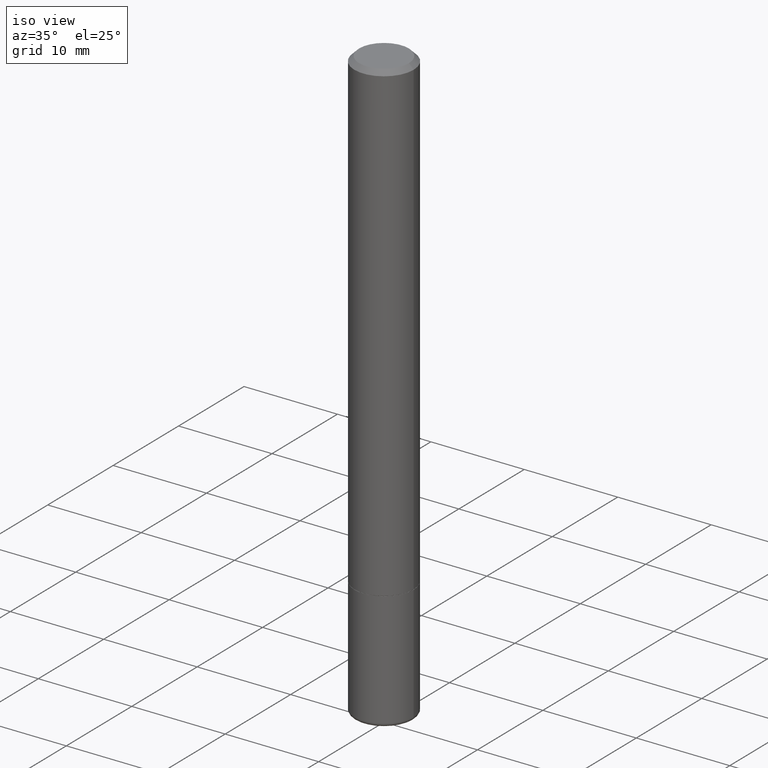
[diagram: clean part render]
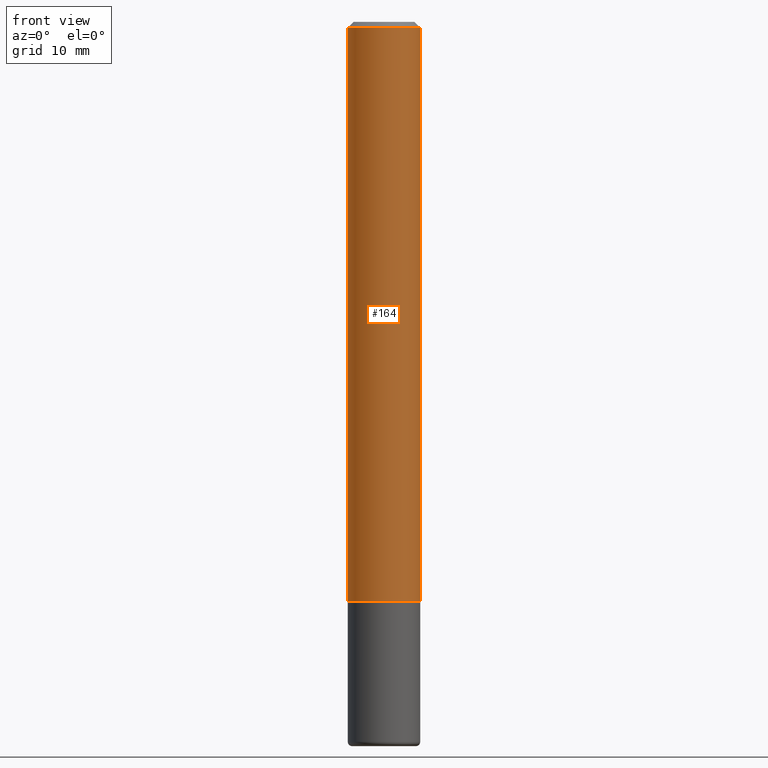
[diagram: tour spotlight — one face highlighted and labeled with its STEP entity id]
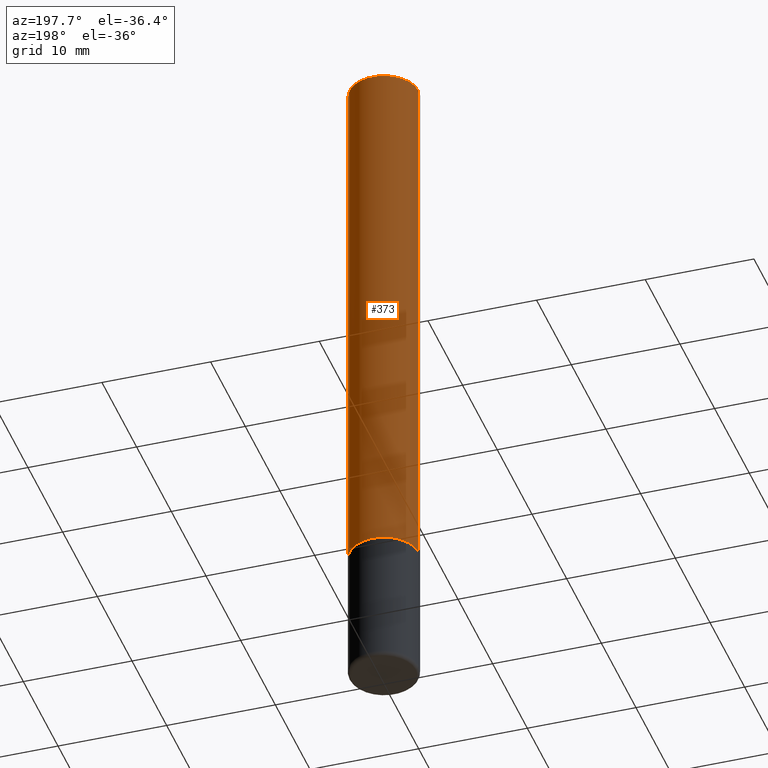
[diagram: tour spotlight — one face highlighted and labeled with its STEP entity id]
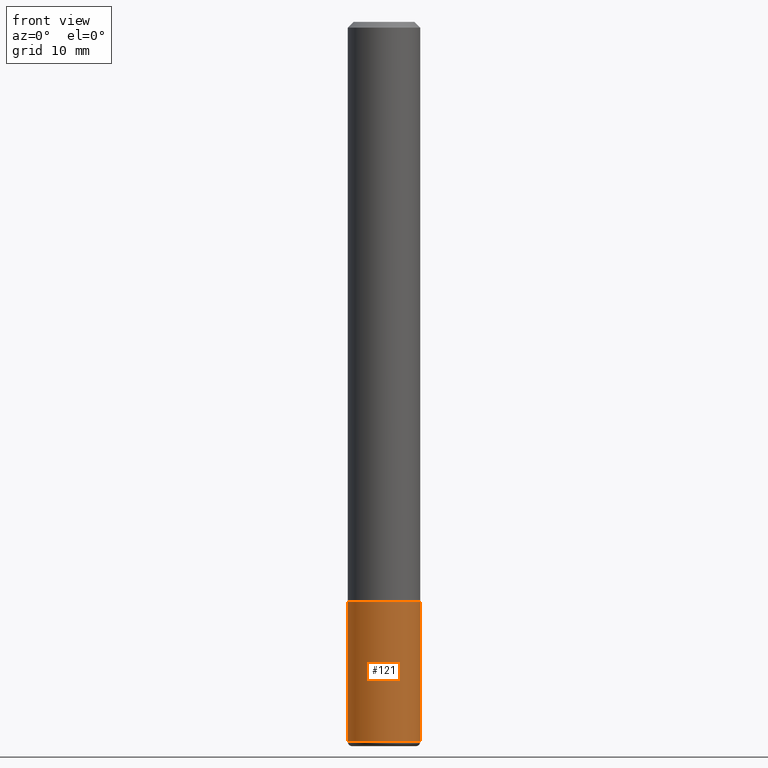
[diagram: tour spotlight — one face highlighted and labeled with its STEP entity id]
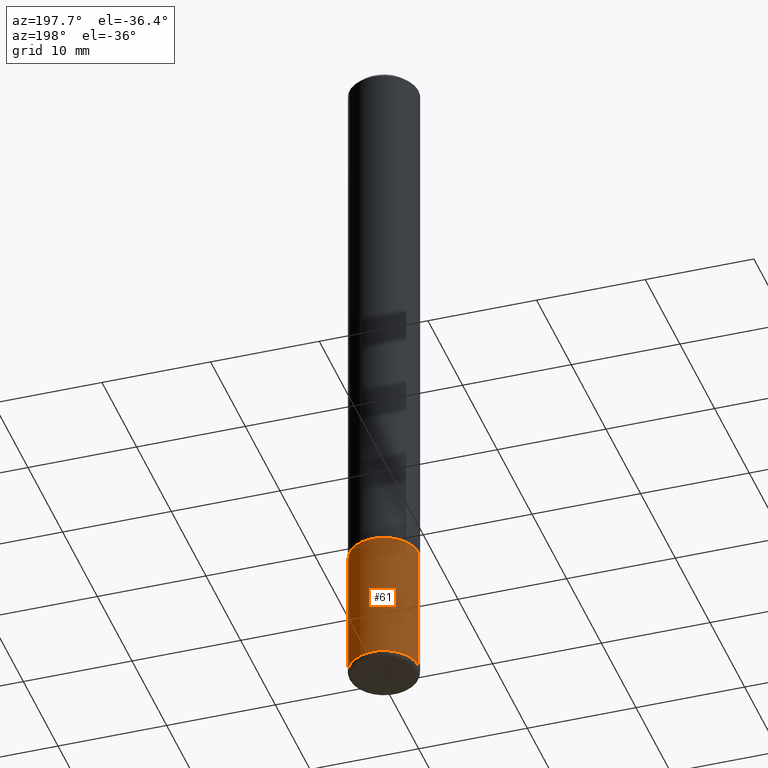
[diagram: tour spotlight — one face highlighted and labeled with its STEP entity id]
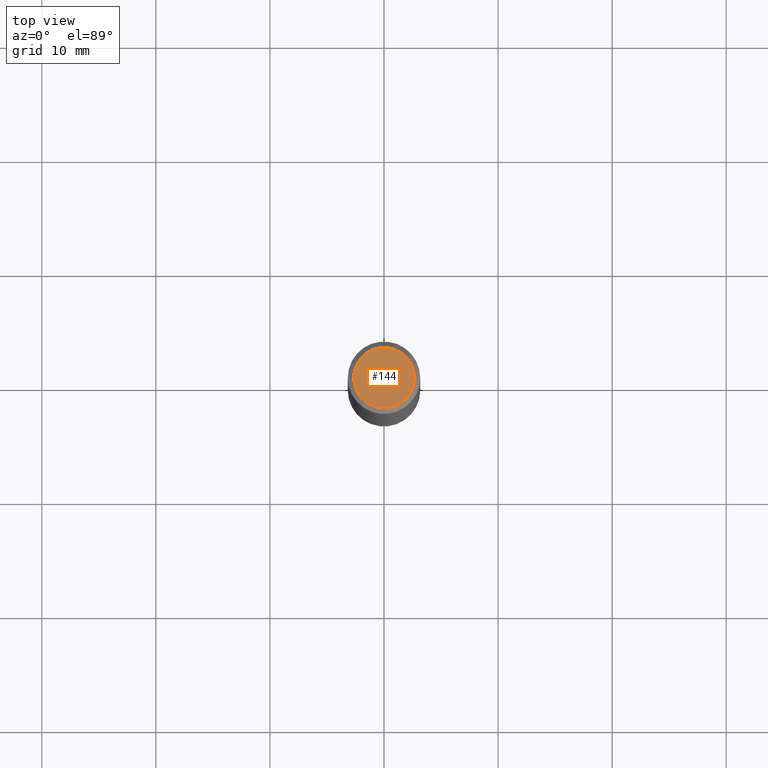
[diagram: tour spotlight — one face highlighted and labeled with its STEP entity id]
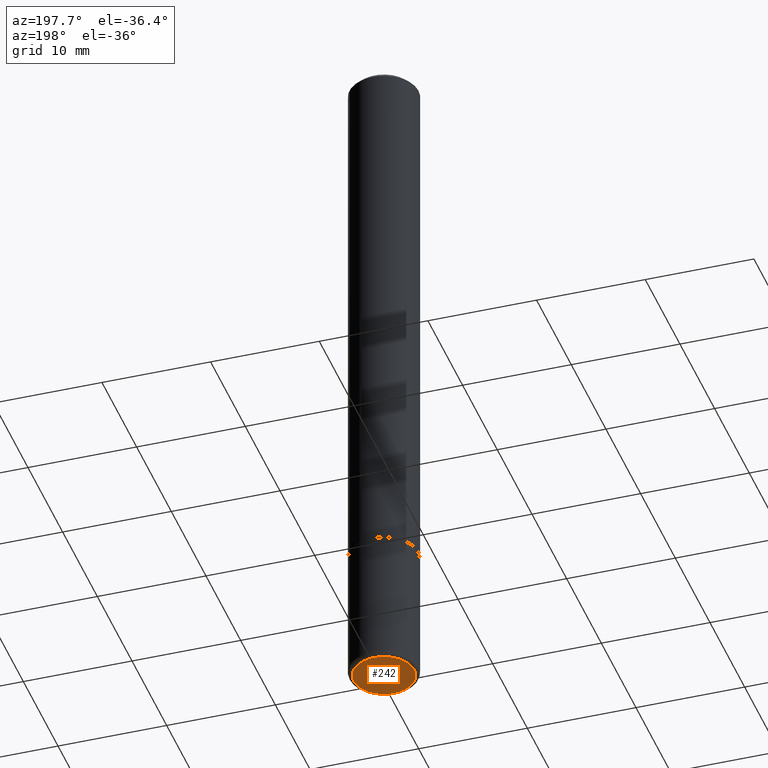
[diagram: tour spotlight — one face highlighted and labeled with its STEP entity id]
A machine part: a face-by-face anatomy tour. The part has 14 B-rep faces; the first image is the clean iso view, then the 6 largest visible faces are spotlighted one at a time (largest first), each with its STEP entity span.

Face 1 — front view, entity #164. In plain terms, the highlighted cylindrical surface (edge-blend (fillet) strip) has radius 3.175 mm, axis along (-0, 0, 1).
Definition (entity closure, byte-faithful):
#36 = DIRECTION ( 'NONE',  ( 1.000000000000000000, -6.982962677686264344E-15, 0.000000000000000000 ) ) ;
#54 = AXIS2_PLACEMENT_3D ( 'NONE', #204, #304, #36 ) ;
#66 = EDGE_CURVE ( 'NONE', #192, #297, #413, .T. ) ;
#67 = LINE ( 'NONE', #187, #380 ) ;
#81 = CARTESIAN_POINT ( 'NONE',  ( 0.000000000000000000, 0.000000000000000000, 0.000000000000000000 ) ) ;
#84 = FACE_OUTER_BOUND ( 'NONE', #151, .T. ) ;
#89 = VECTOR ( 'NONE', #337, 39.37007874015748143 ) ;
#91 = LINE ( 'NONE', #124, #89 ) ;
#124 = CARTESIAN_POINT ( 'NONE',  ( -0.1250000000000001110, 8.881784197001260212E-16, -6.148668862818637832E-30 ) ) ;
#151 = EDGE_LOOP ( 'NONE', ( #415, #287, #336, #173 ) ) ;
#164 = ADVANCED_FACE ( 'NONE', ( #84 ), #317, .T. ) ;
#173 = ORIENTED_EDGE ( 'NONE', *, *, #66, .F. ) ;
#179 = EDGE_CURVE ( 'NONE', #393, #297, #67, .T. ) ;
#187 = CARTESIAN_POINT ( 'NONE',  ( 0.1250000000000001110, -8.728703347107841277E-16, 6.095220969744924646E-30 ) ) ;
#191 = CARTESIAN_POINT ( 'NONE',  ( -0.1249999999999999861, 8.030407079339202378E-16, -0.02000000000000002470 ) ) ;
#192 = VERTEX_POINT ( 'NONE', #191 ) ;
#193 = DIRECTION ( 'NONE',  ( -2.445468806185136877E-29, 3.491481338843145188E-15, 1.000000000000000000 ) ) ;
#204 = CARTESIAN_POINT ( 'NONE',  ( 4.888492143564087591E-29, -6.979471196347447369E-15, -1.998999999999999888 ) ) ;
#211 = DIRECTION ( 'NONE',  ( -2.445468806185136597E-29, 3.491481338843145583E-15, 1.000000000000000000 ) ) ;
#221 = CARTESIAN_POINT ( 'NONE',  ( 0.1249999999999999861, -9.273918764983043491E-16, -0.02000000000000002470 ) ) ;
#226 = CARTESIAN_POINT ( 'NONE',  ( -0.1250000000000002498, -2.636471991862024185E-15, -1.998999999999999888 ) ) ;
#238 = AXIS2_PLACEMENT_3D ( 'NONE', #375, #403, #410 ) ;
#287 = ORIENTED_EDGE ( 'NONE', *, *, #365, .T. ) ;
#297 = VERTEX_POINT ( 'NONE', #221 ) ;
#304 = DIRECTION ( 'NONE',  ( -2.445468806185136597E-29, 3.491481338843145583E-15, 1.000000000000000000 ) ) ;
#317 = CYLINDRICAL_SURFACE ( 'NONE', #352, 0.1250000000000001110 ) ;
#330 = VERTEX_POINT ( 'NONE', #226 ) ;
#336 = ORIENTED_EDGE ( 'NONE', *, *, #179, .T. ) ;
#337 = DIRECTION ( 'NONE',  ( -2.445468806185136877E-29, 3.491481338843145188E-15, 1.000000000000000000 ) ) ;
#349 = CARTESIAN_POINT ( 'NONE',  ( 0.1250000000000002498, -7.852341531058232286E-15, -1.998999999999999888 ) ) ;
#352 = AXIS2_PLACEMENT_3D ( 'NONE', #81, #211, #407 ) ;
#362 = CIRCLE ( 'NONE', #54, 0.1250000000000002498 ) ;
#365 = EDGE_CURVE ( 'NONE', #330, #393, #362, .T. ) ;
#375 = CARTESIAN_POINT ( 'NONE',  ( 4.890937612370279289E-31, -6.982962677686299005E-17, -0.02000000000000002470 ) ) ;
#380 = VECTOR ( 'NONE', #193, 39.37007874015748143 ) ;
#393 = VERTEX_POINT ( 'NONE', #349 ) ;
#403 = DIRECTION ( 'NONE',  ( -2.445468806185136597E-29, 3.491481338843145583E-15, 1.000000000000000000 ) ) ;
#407 = DIRECTION ( 'NONE',  ( 1.000000000000000000, -6.982962677686266711E-15, 4.876176775795935232E-29 ) ) ;
#409 = EDGE_CURVE ( 'NONE', #330, #192, #91, .T. ) ;
#410 = DIRECTION ( 'NONE',  ( 1.000000000000000000, -6.982962677686266711E-15, 0.000000000000000000 ) ) ;
#413 = CIRCLE ( 'NONE', #238, 0.1249999999999999861 ) ;
#415 = ORIENTED_EDGE ( 'NONE', *, *, #409, .F. ) ;

Face 2 — auxiliary view, entity #373. In plain terms, the highlighted cylindrical surface (edge-blend (fillet) strip) has radius 3.175 mm, axis along (-0, 0, 1).
Definition (entity closure, byte-faithful):
#9 = ORIENTED_EDGE ( 'NONE', *, *, #354, .F. ) ;
#11 = FACE_OUTER_BOUND ( 'NONE', #38, .T. ) ;
#17 = ORIENTED_EDGE ( 'NONE', *, *, #179, .F. ) ;
#21 = AXIS2_PLACEMENT_3D ( 'NONE', #312, #279, #208 ) ;
#25 = ORIENTED_EDGE ( 'NONE', *, *, #43, .T. ) ;
#38 = EDGE_LOOP ( 'NONE', ( #25, #364, #9, #17 ) ) ;
#42 = DIRECTION ( 'NONE',  ( -2.445468806185136597E-29, 3.491481338843145583E-15, 1.000000000000000000 ) ) ;
#43 = EDGE_CURVE ( 'NONE', #393, #330, #198, .T. ) ;
#67 = LINE ( 'NONE', #187, #380 ) ;
#89 = VECTOR ( 'NONE', #337, 39.37007874015748143 ) ;
#91 = LINE ( 'NONE', #124, #89 ) ;
#108 = CARTESIAN_POINT ( 'NONE',  ( 4.890937612370279289E-31, -6.982962677686299005E-17, -0.02000000000000002470 ) ) ;
#114 = CARTESIAN_POINT ( 'NONE',  ( 0.000000000000000000, 0.000000000000000000, 0.000000000000000000 ) ) ;
#124 = CARTESIAN_POINT ( 'NONE',  ( -0.1250000000000001110, 8.881784197001260212E-16, -6.148668862818637832E-30 ) ) ;
#179 = EDGE_CURVE ( 'NONE', #393, #297, #67, .T. ) ;
#187 = CARTESIAN_POINT ( 'NONE',  ( 0.1250000000000001110, -8.728703347107841277E-16, 6.095220969744924646E-30 ) ) ;
#191 = CARTESIAN_POINT ( 'NONE',  ( -0.1249999999999999861, 8.030407079339202378E-16, -0.02000000000000002470 ) ) ;
#192 = VERTEX_POINT ( 'NONE', #191 ) ;
#193 = DIRECTION ( 'NONE',  ( -2.445468806185136877E-29, 3.491481338843145188E-15, 1.000000000000000000 ) ) ;
#198 = CIRCLE ( 'NONE', #21, 0.1250000000000002498 ) ;
#202 = DIRECTION ( 'NONE',  ( 1.000000000000000000, -6.982962677686266711E-15, 0.000000000000000000 ) ) ;
#208 = DIRECTION ( 'NONE',  ( 1.000000000000000000, -6.982962677686264344E-15, 0.000000000000000000 ) ) ;
#209 = CIRCLE ( 'NONE', #353, 0.1249999999999999861 ) ;
#221 = CARTESIAN_POINT ( 'NONE',  ( 0.1249999999999999861, -9.273918764983043491E-16, -0.02000000000000002470 ) ) ;
#226 = CARTESIAN_POINT ( 'NONE',  ( -0.1250000000000002498, -2.636471991862024185E-15, -1.998999999999999888 ) ) ;
#240 = DIRECTION ( 'NONE',  ( -2.445468806185136597E-29, 3.491481338843145583E-15, 1.000000000000000000 ) ) ;
#245 = AXIS2_PLACEMENT_3D ( 'NONE', #114, #240, #296 ) ;
#271 = CYLINDRICAL_SURFACE ( 'NONE', #245, 0.1250000000000001110 ) ;
#279 = DIRECTION ( 'NONE',  ( -2.445468806185136597E-29, 3.491481338843145583E-15, 1.000000000000000000 ) ) ;
#296 = DIRECTION ( 'NONE',  ( 1.000000000000000000, -6.982962677686266711E-15, 4.876176775795935232E-29 ) ) ;
#297 = VERTEX_POINT ( 'NONE', #221 ) ;
#312 = CARTESIAN_POINT ( 'NONE',  ( 4.888492143564087591E-29, -6.979471196347447369E-15, -1.998999999999999888 ) ) ;
#330 = VERTEX_POINT ( 'NONE', #226 ) ;
#337 = DIRECTION ( 'NONE',  ( -2.445468806185136877E-29, 3.491481338843145188E-15, 1.000000000000000000 ) ) ;
#349 = CARTESIAN_POINT ( 'NONE',  ( 0.1250000000000002498, -7.852341531058232286E-15, -1.998999999999999888 ) ) ;
#353 = AXIS2_PLACEMENT_3D ( 'NONE', #108, #42, #202 ) ;
#354 = EDGE_CURVE ( 'NONE', #297, #192, #209, .T. ) ;
#364 = ORIENTED_EDGE ( 'NONE', *, *, #409, .T. ) ;
#373 = ADVANCED_FACE ( 'NONE', ( #11 ), #271, .T. ) ;
#380 = VECTOR ( 'NONE', #193, 39.37007874015748143 ) ;
#393 = VERTEX_POINT ( 'NONE', #349 ) ;
#409 = EDGE_CURVE ( 'NONE', #330, #192, #91, .T. ) ;

Face 3 — front view, entity #121. In plain terms, the highlighted cylindrical surface (edge-blend (fillet) strip) has radius 3.175 mm, axis along (-0, 0, 1).
Definition (entity closure, byte-faithful):
#4 = EDGE_CURVE ( 'NONE', #111, #93, #13, .T. ) ;
#13 = CIRCLE ( 'NONE', #52, 0.1250000000000000000 ) ;
#29 = ORIENTED_EDGE ( 'NONE', *, *, #4, .F. ) ;
#33 = DIRECTION ( 'NONE',  ( -2.445468806185136877E-29, 3.491481338843145188E-15, 1.000000000000000000 ) ) ;
#47 = AXIS2_PLACEMENT_3D ( 'NONE', #379, #408, #339 ) ;
#52 = AXIS2_PLACEMENT_3D ( 'NONE', #77, #342, #149 ) ;
#65 = LINE ( 'NONE', #358, #333 ) ;
#73 = VERTEX_POINT ( 'NONE', #276 ) ;
#75 = EDGE_CURVE ( 'NONE', #308, #73, #82, .T. ) ;
#77 = CARTESIAN_POINT ( 'NONE',  ( 4.890937612370273194E-29, -6.982962677686291165E-15, -2.000000000000000000 ) ) ;
#82 = CIRCLE ( 'NONE', #377, 0.1250000000000000000 ) ;
#86 = FACE_OUTER_BOUND ( 'NONE', #205, .T. ) ;
#90 = LINE ( 'NONE', #214, #270 ) ;
#93 = VERTEX_POINT ( 'NONE', #370 ) ;
#111 = VERTEX_POINT ( 'NONE', #251 ) ;
#121 = ADVANCED_FACE ( 'NONE', ( #86 ), #212, .T. ) ;
#138 = EDGE_CURVE ( 'NONE', #308, #111, #90, .T. ) ;
#149 = DIRECTION ( 'NONE',  ( 1.000000000000000000, -6.982962677686270655E-15, 0.000000000000000000 ) ) ;
#205 = EDGE_LOOP ( 'NONE', ( #281, #388, #399, #29 ) ) ;
#210 = EDGE_CURVE ( 'NONE', #73, #93, #65, .T. ) ;
#212 = CYLINDRICAL_SURFACE ( 'NONE', #47, 0.1250000000000000000 ) ;
#214 = CARTESIAN_POINT ( 'NONE',  ( -0.1250000000000000000, 8.881784197001252323E-16, -6.148668862818632227E-30 ) ) ;
#241 = DIRECTION ( 'NONE',  ( 1.000000000000000000, -6.982962677686270655E-15, 0.000000000000000000 ) ) ;
#251 = CARTESIAN_POINT ( 'NONE',  ( -0.1250000000000000000, -6.941468482655628296E-15, -2.000000000000000000 ) ) ;
#270 = VECTOR ( 'NONE', #280, 39.37007874015748143 ) ;
#276 = CARTESIAN_POINT ( 'NONE',  ( 0.1250000000000000555, -9.549201461736000019E-15, -2.484999999999999876 ) ) ;
#280 = DIRECTION ( 'NONE',  ( -2.445468806185136877E-29, 3.491481338843145188E-15, 1.000000000000000000 ) ) ;
#281 = ORIENTED_EDGE ( 'NONE', *, *, #138, .F. ) ;
#292 = CARTESIAN_POINT ( 'NONE',  ( -0.1250000000000000555, -7.788152707325091448E-15, -2.484999999999999876 ) ) ;
#308 = VERTEX_POINT ( 'NONE', #292 ) ;
#333 = VECTOR ( 'NONE', #33, 39.37007874015748143 ) ;
#339 = DIRECTION ( 'NONE',  ( 1.000000000000000000, -6.982962677686266711E-15, 4.876176775795935793E-29 ) ) ;
#340 = CARTESIAN_POINT ( 'NONE',  ( 6.076989983370064174E-29, -8.676331127025216680E-15, -2.484999999999999876 ) ) ;
#342 = DIRECTION ( 'NONE',  ( -2.445468806185136597E-29, 3.491481338843145583E-15, 1.000000000000000000 ) ) ;
#358 = CARTESIAN_POINT ( 'NONE',  ( 0.1250000000000000000, -8.728703347107833388E-16, 6.095220969744919741E-30 ) ) ;
#370 = CARTESIAN_POINT ( 'NONE',  ( 0.1250000000000000000, -7.855833012397075293E-15, -2.000000000000000000 ) ) ;
#377 = AXIS2_PLACEMENT_3D ( 'NONE', #340, #405, #241 ) ;
#379 = CARTESIAN_POINT ( 'NONE',  ( 0.000000000000000000, 0.000000000000000000, 0.000000000000000000 ) ) ;
#388 = ORIENTED_EDGE ( 'NONE', *, *, #75, .T. ) ;
#399 = ORIENTED_EDGE ( 'NONE', *, *, #210, .T. ) ;
#405 = DIRECTION ( 'NONE',  ( -2.445468806185136597E-29, 3.491481338843145583E-15, 1.000000000000000000 ) ) ;
#408 = DIRECTION ( 'NONE',  ( -2.445468806185136597E-29, 3.491481338843145583E-15, 1.000000000000000000 ) ) ;

Face 4 — auxiliary view, entity #61. In plain terms, the highlighted cylindrical surface (edge-blend (fillet) strip) has radius 3.175 mm, axis along (-0, 0, 1).
Definition (entity closure, byte-faithful):
#15 = CIRCLE ( 'NONE', #63, 0.1250000000000000000 ) ;
#31 = EDGE_LOOP ( 'NONE', ( #96, #385, #168, #266 ) ) ;
#33 = DIRECTION ( 'NONE',  ( -2.445468806185136877E-29, 3.491481338843145188E-15, 1.000000000000000000 ) ) ;
#58 = CARTESIAN_POINT ( 'NONE',  ( 4.890937612370273194E-29, -6.982962677686291165E-15, -2.000000000000000000 ) ) ;
#61 = ADVANCED_FACE ( 'NONE', ( #150 ), #182, .T. ) ;
#63 = AXIS2_PLACEMENT_3D ( 'NONE', #58, #381, #265 ) ;
#65 = LINE ( 'NONE', #358, #333 ) ;
#73 = VERTEX_POINT ( 'NONE', #276 ) ;
#79 = EDGE_CURVE ( 'NONE', #73, #308, #88, .T. ) ;
#88 = CIRCLE ( 'NONE', #140, 0.1250000000000000000 ) ;
#90 = LINE ( 'NONE', #214, #270 ) ;
#93 = VERTEX_POINT ( 'NONE', #370 ) ;
#96 = ORIENTED_EDGE ( 'NONE', *, *, #79, .T. ) ;
#111 = VERTEX_POINT ( 'NONE', #251 ) ;
#115 = DIRECTION ( 'NONE',  ( -2.445468806185136597E-29, 3.491481338843145583E-15, 1.000000000000000000 ) ) ;
#122 = DIRECTION ( 'NONE',  ( 1.000000000000000000, -6.982962677686270655E-15, 0.000000000000000000 ) ) ;
#138 = EDGE_CURVE ( 'NONE', #308, #111, #90, .T. ) ;
#140 = AXIS2_PLACEMENT_3D ( 'NONE', #316, #115, #122 ) ;
#147 = CARTESIAN_POINT ( 'NONE',  ( 0.000000000000000000, 0.000000000000000000, 0.000000000000000000 ) ) ;
#150 = FACE_OUTER_BOUND ( 'NONE', #31, .T. ) ;
#168 = ORIENTED_EDGE ( 'NONE', *, *, #231, .F. ) ;
#178 = DIRECTION ( 'NONE',  ( 1.000000000000000000, -6.982962677686266711E-15, 4.876176775795935793E-29 ) ) ;
#180 = AXIS2_PLACEMENT_3D ( 'NONE', #147, #310, #178 ) ;
#182 = CYLINDRICAL_SURFACE ( 'NONE', #180, 0.1250000000000000000 ) ;
#210 = EDGE_CURVE ( 'NONE', #73, #93, #65, .T. ) ;
#214 = CARTESIAN_POINT ( 'NONE',  ( -0.1250000000000000000, 8.881784197001252323E-16, -6.148668862818632227E-30 ) ) ;
#231 = EDGE_CURVE ( 'NONE', #93, #111, #15, .T. ) ;
#251 = CARTESIAN_POINT ( 'NONE',  ( -0.1250000000000000000, -6.941468482655628296E-15, -2.000000000000000000 ) ) ;
#265 = DIRECTION ( 'NONE',  ( 1.000000000000000000, -6.982962677686270655E-15, 0.000000000000000000 ) ) ;
#266 = ORIENTED_EDGE ( 'NONE', *, *, #210, .F. ) ;
#270 = VECTOR ( 'NONE', #280, 39.37007874015748143 ) ;
#276 = CARTESIAN_POINT ( 'NONE',  ( 0.1250000000000000555, -9.549201461736000019E-15, -2.484999999999999876 ) ) ;
#280 = DIRECTION ( 'NONE',  ( -2.445468806185136877E-29, 3.491481338843145188E-15, 1.000000000000000000 ) ) ;
#292 = CARTESIAN_POINT ( 'NONE',  ( -0.1250000000000000555, -7.788152707325091448E-15, -2.484999999999999876 ) ) ;
#308 = VERTEX_POINT ( 'NONE', #292 ) ;
#310 = DIRECTION ( 'NONE',  ( -2.445468806185136597E-29, 3.491481338843145583E-15, 1.000000000000000000 ) ) ;
#316 = CARTESIAN_POINT ( 'NONE',  ( 6.076989983370064174E-29, -8.676331127025216680E-15, -2.484999999999999876 ) ) ;
#333 = VECTOR ( 'NONE', #33, 39.37007874015748143 ) ;
#358 = CARTESIAN_POINT ( 'NONE',  ( 0.1250000000000000000, -8.728703347107833388E-16, 6.095220969744919741E-30 ) ) ;
#370 = CARTESIAN_POINT ( 'NONE',  ( 0.1250000000000000000, -7.855833012397075293E-15, -2.000000000000000000 ) ) ;
#381 = DIRECTION ( 'NONE',  ( -2.445468806185136597E-29, 3.491481338843145583E-15, 1.000000000000000000 ) ) ;
#385 = ORIENTED_EDGE ( 'NONE', *, *, #138, .T. ) ;

Face 5 — top view, entity #144. In plain terms, the highlighted planar face has unit normal (0, -0, -1).
Definition (entity closure, byte-faithful):
#10 = EDGE_CURVE ( 'NONE', #132, #158, #53, .T. ) ;
#20 = DIRECTION ( 'NONE',  ( 2.438088387897960049E-29, -3.491481338843145188E-15, -1.000000000000000000 ) ) ;
#30 = DIRECTION ( 'NONE',  ( -2.445468806185136597E-29, 3.491481338843145583E-15, 1.000000000000000000 ) ) ;
#41 = CIRCLE ( 'NONE', #156, 0.1049999999999999406 ) ;
#53 = CIRCLE ( 'NONE', #268, 0.1049999999999999406 ) ;
#55 = CARTESIAN_POINT ( 'NONE',  ( -1.670162262936351711E-45, 2.384549072608715520E-31, 6.829619984160658046E-17 ) ) ;
#56 = CARTESIAN_POINT ( 'NONE',  ( 0.1049999999999999406, -8.238720831321571714E-16, 6.829619984161202853E-17 ) ) ;
#120 = PLANE ( 'NONE',  #400 ) ;
#123 = CARTESIAN_POINT ( 'NONE',  ( 7.332110811570575313E-16, 0.1049999999999999406, -3.324574406577267327E-16 ) ) ;
#132 = VERTEX_POINT ( 'NONE', #244 ) ;
#144 = ADVANCED_FACE ( 'NONE', ( #277 ), #120, .F. ) ;
#156 = AXIS2_PLACEMENT_3D ( 'NONE', #200, #30, #255 ) ;
#158 = VERTEX_POINT ( 'NONE', #56 ) ;
#161 = ORIENTED_EDGE ( 'NONE', *, *, #222, .T. ) ;
#185 = DIRECTION ( 'NONE',  ( -1.000000000000000000, 6.982962677686265922E-15, -4.876176775795935793E-29 ) ) ;
#200 = CARTESIAN_POINT ( 'NONE',  ( -1.670162262936351711E-45, 2.384549072608715520E-31, 6.829619984160658046E-17 ) ) ;
#217 = DIRECTION ( 'NONE',  ( 1.000000000000000000, -6.982962677686265922E-15, 4.881622206245865394E-29 ) ) ;
#222 = EDGE_CURVE ( 'NONE', #158, #132, #41, .T. ) ;
#244 = CARTESIAN_POINT ( 'NONE',  ( -0.1049999999999999406, 7.681258945454890818E-16, 6.829619984160132961E-17 ) ) ;
#255 = DIRECTION ( 'NONE',  ( 1.000000000000000000, -6.982962677686265922E-15, 4.881622206245865394E-29 ) ) ;
#268 = AXIS2_PLACEMENT_3D ( 'NONE', #55, #344, #217 ) ;
#277 = FACE_OUTER_BOUND ( 'NONE', #360, .T. ) ;
#344 = DIRECTION ( 'NONE',  ( -2.445468806185136597E-29, 3.491481338843145583E-15, 1.000000000000000000 ) ) ;
#360 = EDGE_LOOP ( 'NONE', ( #418, #161 ) ) ;
#400 = AXIS2_PLACEMENT_3D ( 'NONE', #123, #20, #185 ) ;
#418 = ORIENTED_EDGE ( 'NONE', *, *, #10, .T. ) ;

Face 6 — auxiliary view, entity #242. In plain terms, the highlighted planar face has unit normal (0, -0, -1).
Definition (entity closure, byte-faithful):
#2 = FACE_OUTER_BOUND ( 'NONE', #391, .T. ) ;
#5 = CARTESIAN_POINT ( 'NONE',  ( -0.1100000000000000006, -7.867629522548422746E-15, -2.500000000000000000 ) ) ;
#7 = AXIS2_PLACEMENT_3D ( 'NONE', #327, #154, #319 ) ;
#19 = CARTESIAN_POINT ( 'NONE',  ( 0.1100000000000000006, -9.496829241653354912E-15, -2.500000000000000000 ) ) ;
#24 = DIRECTION ( 'NONE',  ( -1.000000000000000000, 6.982962677686265922E-15, -4.876176775795935793E-29 ) ) ;
#59 = ORIENTED_EDGE ( 'NONE', *, *, #326, .F. ) ;
#64 = VERTEX_POINT ( 'NONE', #19 ) ;
#78 = AXIS2_PLACEMENT_3D ( 'NONE', #283, #167, #24 ) ;
#95 = PLANE ( 'NONE',  #78 ) ;
#100 = DIRECTION ( 'NONE',  ( 1.000000000000000000, -6.982962677686270655E-15, 0.000000000000000000 ) ) ;
#133 = CARTESIAN_POINT ( 'NONE',  ( 6.113672015462842613E-29, -8.728703347107864943E-15, -2.500000000000000000 ) ) ;
#154 = DIRECTION ( 'NONE',  ( -2.445468806185136597E-29, 3.491481338843145583E-15, 1.000000000000000000 ) ) ;
#167 = DIRECTION ( 'NONE',  ( 2.438088387897960049E-29, -3.491481338843145188E-15, -1.000000000000000000 ) ) ;
#174 = AXIS2_PLACEMENT_3D ( 'NONE', #133, #390, #100 ) ;
#201 = ORIENTED_EDGE ( 'NONE', *, *, #227, .F. ) ;
#227 = EDGE_CURVE ( 'NONE', #324, #64, #263, .T. ) ;
#239 = CIRCLE ( 'NONE', #174, 0.1100000000000000006 ) ;
#242 = ADVANCED_FACE ( 'NONE', ( #2 ), #95, .T. ) ;
#263 = CIRCLE ( 'NONE', #7, 0.1100000000000000006 ) ;
#283 = CARTESIAN_POINT ( 'NONE',  ( 6.113672015462842613E-29, -8.728703347107864943E-15, -2.500000000000000000 ) ) ;
#319 = DIRECTION ( 'NONE',  ( 1.000000000000000000, -6.982962677686270655E-15, 0.000000000000000000 ) ) ;
#324 = VERTEX_POINT ( 'NONE', #5 ) ;
#326 = EDGE_CURVE ( 'NONE', #64, #324, #239, .T. ) ;
#327 = CARTESIAN_POINT ( 'NONE',  ( 6.113672015462842613E-29, -8.728703347107864943E-15, -2.500000000000000000 ) ) ;
#390 = DIRECTION ( 'NONE',  ( -2.445468806185136597E-29, 3.491481338843145583E-15, 1.000000000000000000 ) ) ;
#391 = EDGE_LOOP ( 'NONE', ( #59, #201 ) ) ;